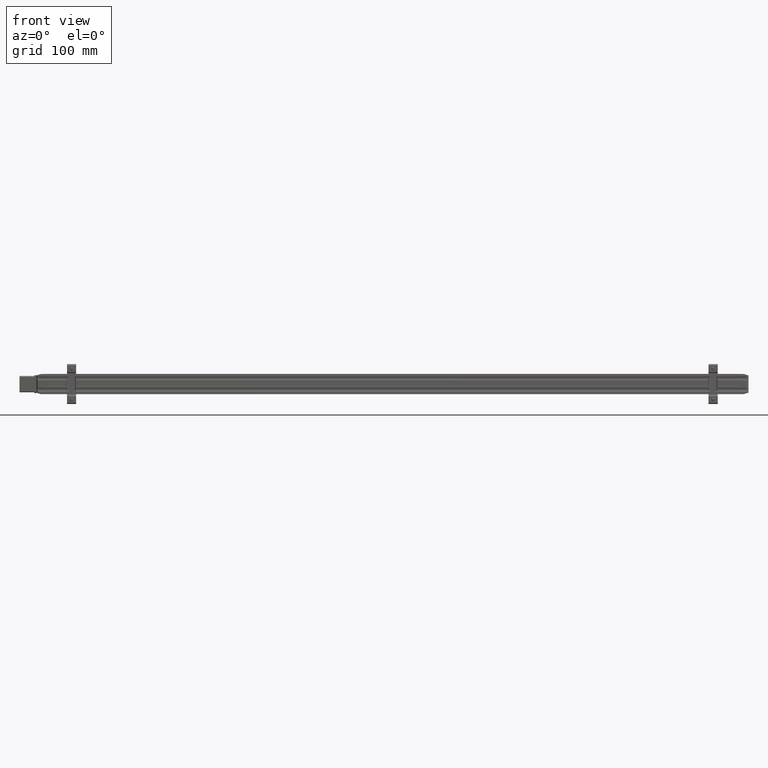
[diagram: clean part render]
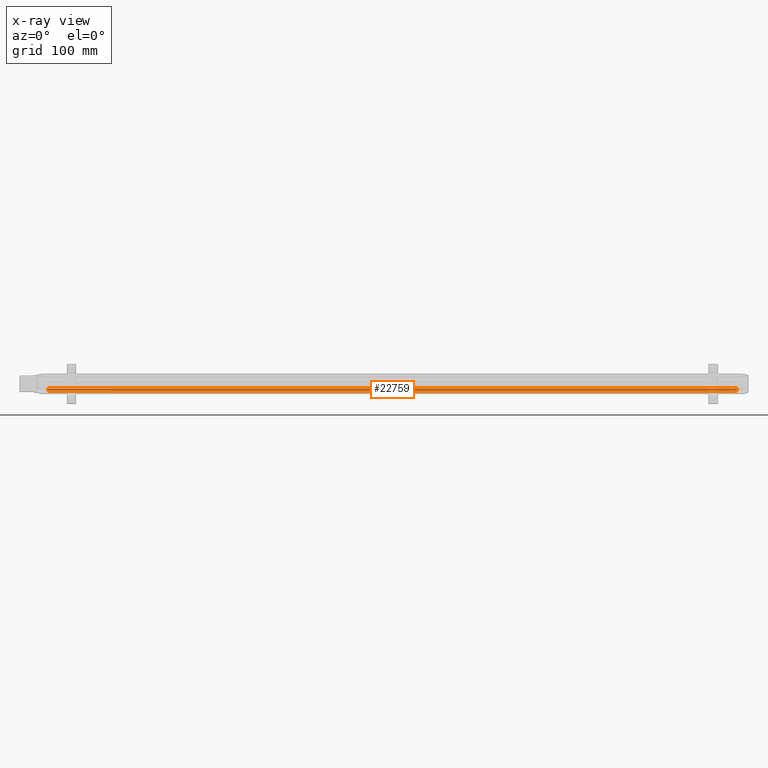
[diagram: x-ray — body ghosted, one internal face saturated and labeled with its STEP entity id]
A machine part, front view, then the same camera in x-ray: the body is ghosted and one INTERNAL B-rep face — a face not visible from any outside direction — is saturated and labeled: STEP entity #22759.
In plain terms, the highlighted planar face has unit normal (0, 1, 0).
Its self-contained STEP definition (entity closure, byte-faithful):
#371 = CARTESIAN_POINT ( 'NONE',  ( 32.28346456692914046, 0.03555712181102338443, -0.9518168551181105386 ) ) ;
#2194 = LINE ( 'NONE', #27074, #26388 ) ;
#4696 = VERTEX_POINT ( 'NONE', #12111 ) ;
#5775 = CARTESIAN_POINT ( 'NONE',  ( -11.81102362204724621, 0.03555712181102338443, -0.9518168551181105386 ) ) ;
#6333 = DIRECTION ( 'NONE',  ( 6.829894528618835672E-25, 1.000000000000000000, 1.101411858383468939E-15 ) ) ;
#8123 = ORIENTED_EDGE ( 'NONE', *, *, #13846, .F. ) ;
#9630 = ORIENTED_EDGE ( 'NONE', *, *, #24888, .T. ) ;
#11029 = DIRECTION ( 'NONE',  ( 1.000000000000000000, -6.829894528618835672E-25, -1.341063538875720069E-28 ) ) ;
#12111 = CARTESIAN_POINT ( 'NONE',  ( -11.81102362204724621, 0.03555712181102365504, -1.075832588779527921 ) ) ;
#12870 = CARTESIAN_POINT ( 'NONE',  ( 32.28346456692914046, 0.03555712181102352321, -1.075832588779527921 ) ) ;
#13212 = DIRECTION ( 'NONE',  ( 1.000000000000000000, -6.829894528618835672E-25, -1.341063538875720069E-28 ) ) ;
#13764 = FACE_OUTER_BOUND ( 'NONE', #13889, .T. ) ;
#13846 = EDGE_CURVE ( 'NONE', #4696, #20933, #2194, .T. ) ;
#13889 = EDGE_LOOP ( 'NONE', ( #33063, #26607, #8123, #9630 ) ) ;
#14973 = CARTESIAN_POINT ( 'NONE',  ( -11.81102362204724621, 0.03555712181102338443, -0.9518168551181105386 ) ) ;
#16361 = DIRECTION ( 'NONE',  ( 1.341063538868197451E-28, -1.101411858383468939E-15, 1.000000000000000000 ) ) ;
#17027 = DIRECTION ( 'NONE',  ( -1.341063538868197451E-28, 1.101411858383468939E-15, -1.000000000000000000 ) ) ;
#17311 = EDGE_CURVE ( 'NONE', #20933, #28124, #32435, .T. ) ;
#18271 = VECTOR ( 'NONE', #37773, 39.37007874015748143 ) ;
#19692 = EDGE_CURVE ( 'NONE', #32854, #28124, #38683, .T. ) ;
#20933 = VERTEX_POINT ( 'NONE', #5775 ) ;
#22759 = ADVANCED_FACE ( 'NONE', ( #13764 ), #45409, .F. ) ;
#24888 = EDGE_CURVE ( 'NONE', #4696, #32854, #35048, .T. ) ;
#26388 = VECTOR ( 'NONE', #16361, 39.37007874015748143 ) ;
#26607 = ORIENTED_EDGE ( 'NONE', *, *, #17311, .F. ) ;
#27074 = CARTESIAN_POINT ( 'NONE',  ( -11.81102362204724621, 0.03555712181102352321, -1.075832588779527921 ) ) ;
#28124 = VERTEX_POINT ( 'NONE', #371 ) ;
#29242 = VECTOR ( 'NONE', #13212, 39.37007874015748143 ) ;
#32435 = LINE ( 'NONE', #14973, #44325 ) ;
#32854 = VERTEX_POINT ( 'NONE', #38927 ) ;
#33063 = ORIENTED_EDGE ( 'NONE', *, *, #19692, .T. ) ;
#35048 = LINE ( 'NONE', #45322, #29242 ) ;
#37773 = DIRECTION ( 'NONE',  ( 1.341063538868197451E-28, -1.101411858383468939E-15, 1.000000000000000000 ) ) ;
#38683 = LINE ( 'NONE', #12870, #18271 ) ;
#38927 = CARTESIAN_POINT ( 'NONE',  ( 32.28346456692914046, 0.03555712181102365504, -1.075832588779527921 ) ) ;
#41909 = CARTESIAN_POINT ( 'NONE',  ( -11.81102362204724621, 0.03555712181102352321, -1.075832588779527921 ) ) ;
#41971 = AXIS2_PLACEMENT_3D ( 'NONE', #41909, #6333, #17027 ) ;
#44325 = VECTOR ( 'NONE', #11029, 39.37007874015748143 ) ;
#45322 = CARTESIAN_POINT ( 'NONE',  ( -11.81102362204724621, 0.03555712181102365504, -1.075832588779527921 ) ) ;
#45409 = PLANE ( 'NONE',  #41971 ) ;